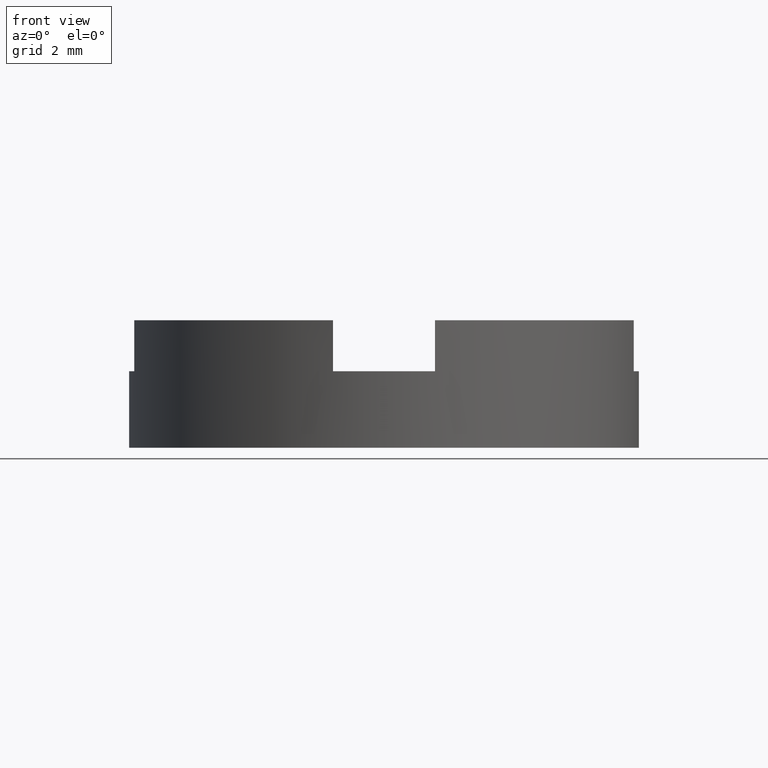
[diagram: clean part render]
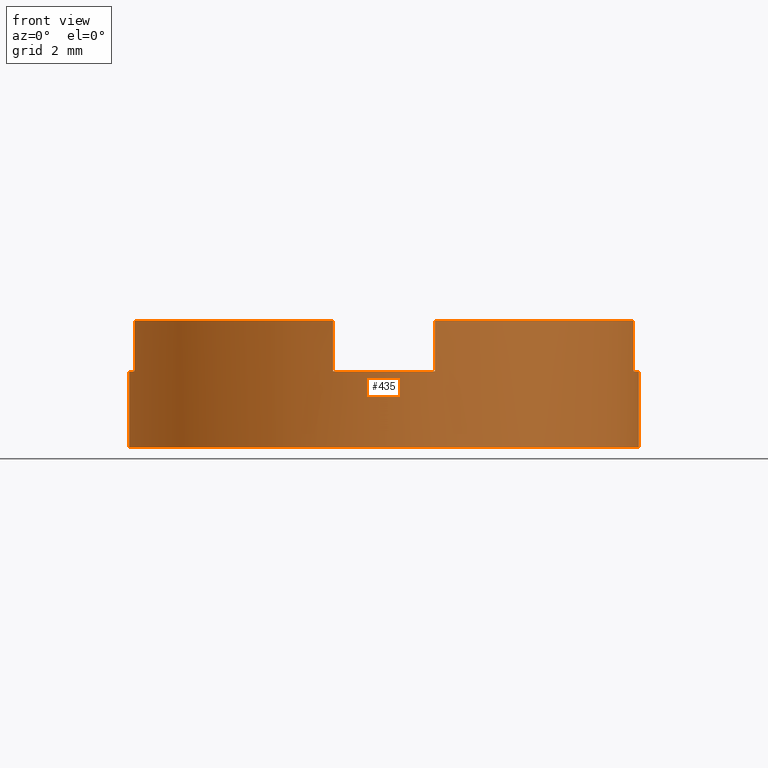
[diagram: same view with one face highlighted and labeled with its STEP entity id]
A machine part, front view. The second image highlights one B-rep face of the part: STEP entity #435.
In plain terms, the highlighted cylindrical surface (partial cylindrical patch) has radius 5 mm, axis along (-0, -0, -1).
Its self-contained STEP definition (entity closure, byte-faithful):
#4 = DIRECTION ( 'NONE',  ( 1.000000000000000000, 0.000000000000000000, 0.000000000000000000 ) ) ;
#13 = CIRCLE ( 'NONE', #182, 5.000000000000000000 ) ;
#23 = EDGE_CURVE ( 'NONE', #170, #103, #405, .T. ) ;
#25 = CARTESIAN_POINT ( 'NONE',  ( 1.000000000000347722, -4.898979485566285597, 2.500000000000000000 ) ) ;
#31 = VERTEX_POINT ( 'NONE', #193 ) ;
#33 = DIRECTION ( 'NONE',  ( -0.000000000000000000, -0.000000000000000000, -1.000000000000000000 ) ) ;
#48 = CARTESIAN_POINT ( 'NONE',  ( 0.000000000000000000, 0.000000000000000000, 2.500000000000000000 ) ) ;
#49 = CARTESIAN_POINT ( 'NONE',  ( -4.898979485566295367, -1.000000000000302425, 2.500000000000000000 ) ) ;
#52 = ORIENTED_EDGE ( 'NONE', *, *, #179, .T. ) ;
#57 = ORIENTED_EDGE ( 'NONE', *, *, #446, .F. ) ;
#67 = DIRECTION ( 'NONE',  ( 0.000000000000000000, 0.000000000000000000, 1.000000000000000000 ) ) ;
#70 = EDGE_CURVE ( 'NONE', #145, #170, #155, .T. ) ;
#82 = CIRCLE ( 'NONE', #160, 5.000000000000000000 ) ;
#91 = VECTOR ( 'NONE', #731, 1000.000000000000000 ) ;
#103 = VERTEX_POINT ( 'NONE', #437 ) ;
#106 = LINE ( 'NONE', #25, #355 ) ;
#118 = CARTESIAN_POINT ( 'NONE',  ( 5.000000000000000000, 6.123233995736766282E-16, 2.500000000000000000 ) ) ;
#124 = EDGE_LOOP ( 'NONE', ( #57, #171, #430, #642, #336, #313, #635, #395, #147, #52, #376, #318 ) ) ;
#140 = DIRECTION ( 'NONE',  ( 0.000000000000000000, 0.000000000000000000, 1.000000000000000000 ) ) ;
#145 = VERTEX_POINT ( 'NONE', #332 ) ;
#147 = ORIENTED_EDGE ( 'NONE', *, *, #425, .T. ) ;
#148 = VECTOR ( 'NONE', #590, 1000.000000000000000 ) ;
#155 = LINE ( 'NONE', #777, #148 ) ;
#160 = AXIS2_PLACEMENT_3D ( 'NONE', #48, #140, #194 ) ;
#170 = VERTEX_POINT ( 'NONE', #565 ) ;
#171 = ORIENTED_EDGE ( 'NONE', *, *, #621, .T. ) ;
#179 = EDGE_CURVE ( 'NONE', #363, #145, #658, .T. ) ;
#182 = AXIS2_PLACEMENT_3D ( 'NONE', #424, #509, #751 ) ;
#188 = CARTESIAN_POINT ( 'NONE',  ( 0.000000000000000000, 0.000000000000000000, 0.000000000000000000 ) ) ;
#191 = EDGE_CURVE ( 'NONE', #314, #349, #671, .T. ) ;
#193 = CARTESIAN_POINT ( 'NONE',  ( 5.000000000000000000, 6.123233995736766282E-16, 1.500000000000000000 ) ) ;
#194 = DIRECTION ( 'NONE',  ( 1.000000000000000000, 0.000000000000000000, 0.000000000000000000 ) ) ;
#207 = CARTESIAN_POINT ( 'NONE',  ( -4.898979485566295367, -1.000000000000302425, 1.500000000000000000 ) ) ;
#214 = CARTESIAN_POINT ( 'NONE',  ( -0.9999999999996523892, -4.898979485566426817, 2.500000000000000000 ) ) ;
#219 = AXIS2_PLACEMENT_3D ( 'NONE', #663, #33, #273 ) ;
#231 = DIRECTION ( 'NONE',  ( 0.000000000000000000, 0.000000000000000000, -1.000000000000000000 ) ) ;
#245 = CARTESIAN_POINT ( 'NONE',  ( 1.000000000000347722, -4.898979485566285597, 2.500000000000000000 ) ) ;
#269 = DIRECTION ( 'NONE',  ( 0.000000000000000000, 0.000000000000000000, -1.000000000000000000 ) ) ;
#273 = DIRECTION ( 'NONE',  ( -1.000000000000000000, 0.000000000000000000, 0.000000000000000000 ) ) ;
#279 = DIRECTION ( 'NONE',  ( -1.000000000000000000, 0.000000000000000000, 0.000000000000000000 ) ) ;
#280 = DIRECTION ( 'NONE',  ( -1.000000000000000000, 0.000000000000000000, 0.000000000000000000 ) ) ;
#297 = EDGE_CURVE ( 'NONE', #591, #397, #82, .T. ) ;
#311 = CARTESIAN_POINT ( 'NONE',  ( 0.000000000000000000, 0.000000000000000000, 1.500000000000000000 ) ) ;
#313 = ORIENTED_EDGE ( 'NONE', *, *, #191, .T. ) ;
#314 = VERTEX_POINT ( 'NONE', #472 ) ;
#318 = ORIENTED_EDGE ( 'NONE', *, *, #23, .T. ) ;
#332 = CARTESIAN_POINT ( 'NONE',  ( -5.000000000000000000, 0.000000000000000000, 1.500000000000000000 ) ) ;
#333 = CARTESIAN_POINT ( 'NONE',  ( -0.9999999999996523892, -4.898979485566426817, 2.500000000000000000 ) ) ;
#336 = ORIENTED_EDGE ( 'NONE', *, *, #434, .T. ) ;
#349 = VERTEX_POINT ( 'NONE', #566 ) ;
#355 = VECTOR ( 'NONE', #570, 1000.000000000000000 ) ;
#359 = VERTEX_POINT ( 'NONE', #333 ) ;
#363 = VERTEX_POINT ( 'NONE', #207 ) ;
#376 = ORIENTED_EDGE ( 'NONE', *, *, #70, .T. ) ;
#377 = VECTOR ( 'NONE', #638, 1000.000000000000000 ) ;
#383 = VECTOR ( 'NONE', #754, 1000.000000000000000 ) ;
#395 = ORIENTED_EDGE ( 'NONE', *, *, #708, .F. ) ;
#397 = VERTEX_POINT ( 'NONE', #431 ) ;
#399 = AXIS2_PLACEMENT_3D ( 'NONE', #188, #695, #4 ) ;
#405 = CIRCLE ( 'NONE', #399, 5.000000000000000000 ) ;
#410 = DIRECTION ( 'NONE',  ( -1.000000000000000000, 0.000000000000000000, 0.000000000000000000 ) ) ;
#414 = AXIS2_PLACEMENT_3D ( 'NONE', #311, #269, #410 ) ;
#420 = CARTESIAN_POINT ( 'NONE',  ( 0.000000000000000000, 0.000000000000000000, 1.500000000000000000 ) ) ;
#421 = CARTESIAN_POINT ( 'NONE',  ( 4.898979485566365533, -0.9999999999999544809, 2.500000000000000000 ) ) ;
#424 = CARTESIAN_POINT ( 'NONE',  ( 0.000000000000000000, 0.000000000000000000, 2.500000000000000000 ) ) ;
#425 = EDGE_CURVE ( 'NONE', #631, #363, #612, .T. ) ;
#430 = ORIENTED_EDGE ( 'NONE', *, *, #433, .T. ) ;
#431 = CARTESIAN_POINT ( 'NONE',  ( 4.898979485566365533, -0.9999999999999544809, 2.500000000000000000 ) ) ;
#433 = EDGE_CURVE ( 'NONE', #657, #397, #649, .T. ) ;
#434 = EDGE_CURVE ( 'NONE', #591, #314, #106, .T. ) ;
#435 = ADVANCED_FACE ( 'NONE', ( #644 ), #652, .T. ) ;
#437 = CARTESIAN_POINT ( 'NONE',  ( 5.000000000000000000, 6.123233995736766282E-16, 0.000000000000000000 ) ) ;
#446 = EDGE_CURVE ( 'NONE', #31, #103, #599, .T. ) ;
#472 = CARTESIAN_POINT ( 'NONE',  ( 1.000000000000347722, -4.898979485566285597, 1.500000000000000000 ) ) ;
#487 = LINE ( 'NONE', #214, #757 ) ;
#502 = CARTESIAN_POINT ( 'NONE',  ( 4.898979485566365533, -0.9999999999999544809, 1.500000000000000000 ) ) ;
#509 = DIRECTION ( 'NONE',  ( 0.000000000000000000, 0.000000000000000000, 1.000000000000000000 ) ) ;
#510 = CIRCLE ( 'NONE', #713, 5.000000000000000000 ) ;
#565 = CARTESIAN_POINT ( 'NONE',  ( -5.000000000000000000, 0.000000000000000000, 0.000000000000000000 ) ) ;
#566 = CARTESIAN_POINT ( 'NONE',  ( -0.9999999999996523892, -4.898979485566426817, 1.500000000000000000 ) ) ;
#570 = DIRECTION ( 'NONE',  ( -0.000000000000000000, -0.000000000000000000, -1.000000000000000000 ) ) ;
#576 = CARTESIAN_POINT ( 'NONE',  ( -4.898979485566295367, -1.000000000000302425, 2.500000000000000000 ) ) ;
#590 = DIRECTION ( 'NONE',  ( -0.000000000000000000, -0.000000000000000000, -1.000000000000000000 ) ) ;
#591 = VERTEX_POINT ( 'NONE', #245 ) ;
#599 = LINE ( 'NONE', #118, #91 ) ;
#601 = CARTESIAN_POINT ( 'NONE',  ( 0.000000000000000000, 0.000000000000000000, 1.500000000000000000 ) ) ;
#612 = LINE ( 'NONE', #576, #377 ) ;
#621 = EDGE_CURVE ( 'NONE', #31, #657, #510, .T. ) ;
#631 = VERTEX_POINT ( 'NONE', #49 ) ;
#635 = ORIENTED_EDGE ( 'NONE', *, *, #733, .T. ) ;
#638 = DIRECTION ( 'NONE',  ( -0.000000000000000000, -0.000000000000000000, -1.000000000000000000 ) ) ;
#642 = ORIENTED_EDGE ( 'NONE', *, *, #297, .F. ) ;
#644 = FACE_OUTER_BOUND ( 'NONE', #124, .T. ) ;
#649 = LINE ( 'NONE', #421, #383 ) ;
#652 = CYLINDRICAL_SURFACE ( 'NONE', #219, 5.000000000000000000 ) ;
#657 = VERTEX_POINT ( 'NONE', #502 ) ;
#658 = CIRCLE ( 'NONE', #764, 5.000000000000000000 ) ;
#663 = CARTESIAN_POINT ( 'NONE',  ( 0.000000000000000000, 0.000000000000000000, 2.500000000000000000 ) ) ;
#671 = CIRCLE ( 'NONE', #414, 5.000000000000000000 ) ;
#695 = DIRECTION ( 'NONE',  ( 0.000000000000000000, 0.000000000000000000, 1.000000000000000000 ) ) ;
#708 = EDGE_CURVE ( 'NONE', #631, #359, #13, .T. ) ;
#713 = AXIS2_PLACEMENT_3D ( 'NONE', #601, #231, #280 ) ;
#730 = DIRECTION ( 'NONE',  ( 0.000000000000000000, -0.000000000000000000, -1.000000000000000000 ) ) ;
#731 = DIRECTION ( 'NONE',  ( -0.000000000000000000, -0.000000000000000000, -1.000000000000000000 ) ) ;
#733 = EDGE_CURVE ( 'NONE', #349, #359, #487, .T. ) ;
#751 = DIRECTION ( 'NONE',  ( 1.000000000000000000, 0.000000000000000000, 0.000000000000000000 ) ) ;
#754 = DIRECTION ( 'NONE',  ( 0.000000000000000000, 0.000000000000000000, 1.000000000000000000 ) ) ;
#757 = VECTOR ( 'NONE', #67, 1000.000000000000000 ) ;
#764 = AXIS2_PLACEMENT_3D ( 'NONE', #420, #730, #279 ) ;
#777 = CARTESIAN_POINT ( 'NONE',  ( -5.000000000000000000, 0.000000000000000000, 2.500000000000000000 ) ) ;